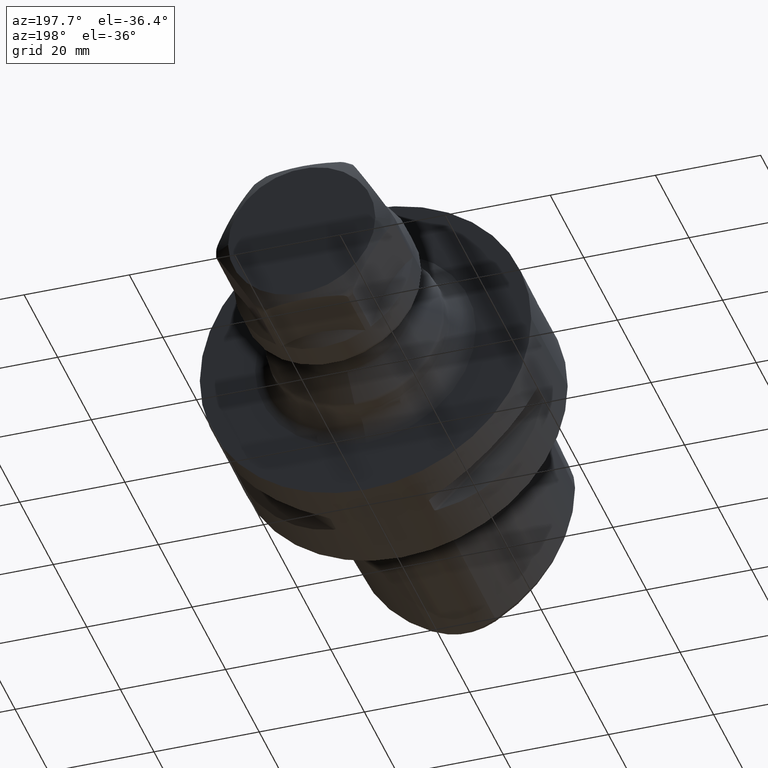
[diagram: clean part render]
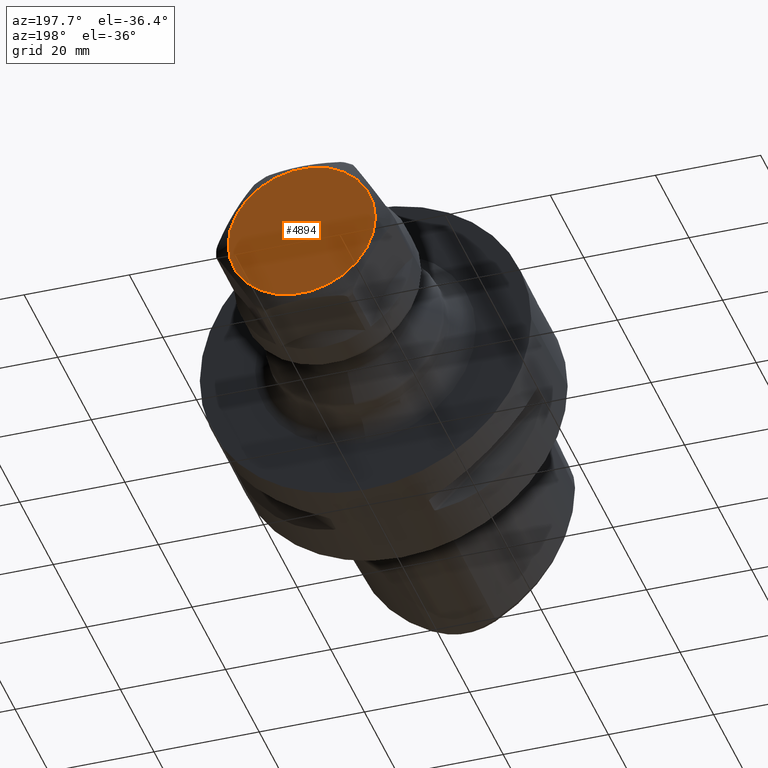
[diagram: same view with one face highlighted and labeled with its STEP entity id]
A machine part, auxiliary view. The second image highlights one B-rep face of the part: STEP entity #4894.
In plain terms, the highlighted planar face has unit normal (0, 1, 0).
Its self-contained STEP definition (entity closure, byte-faithful):
#4337=CARTESIAN_POINT('',(1.9E1,0.E0,0.E0));
#4338=DIRECTION('',(-1.E0,0.E0,0.E0));
#4339=DIRECTION('',(0.E0,1.E0,0.E0));
#4340=AXIS2_PLACEMENT_3D('',#4337,#4338,#4339);
#4667=CARTESIAN_POINT('',(1.9E1,0.E0,0.E0));
#4668=DIRECTION('',(1.E0,0.E0,0.E0));
#4669=DIRECTION('',(0.E0,1.E0,0.E0));
#4670=AXIS2_PLACEMENT_3D('',#4667,#4668,#4669);
#4815=CARTESIAN_POINT('',(1.9E1,1.4E1,0.E0));
#4816=CARTESIAN_POINT('',(1.9E1,-1.4E1,0.E0));
#4817=VERTEX_POINT('',#4815);
#4818=VERTEX_POINT('',#4816);
#4883=CARTESIAN_POINT('',(1.9E1,0.E0,0.E0));
#4884=DIRECTION('',(1.E0,0.E0,0.E0));
#4885=DIRECTION('',(0.E0,-1.E0,0.E0));
#4886=AXIS2_PLACEMENT_3D('',#4883,#4884,#4885);
#4887=PLANE('',#4886);
#4889=ORIENTED_EDGE('',*,*,#4888,.T.);
#4891=ORIENTED_EDGE('',*,*,#4890,.F.);
#4892=EDGE_LOOP('',(#4889,#4891));
#4893=FACE_OUTER_BOUND('',#4892,.F.);
#4894=ADVANCED_FACE('',(#4893),#4887,.T.);
#4341=CIRCLE('',#4340,1.4E1);
#4671=CIRCLE('',#4670,1.4E1);
#4888=EDGE_CURVE('',#4817,#4818,#4341,.T.);
#4890=EDGE_CURVE('',#4817,#4818,#4671,.T.);